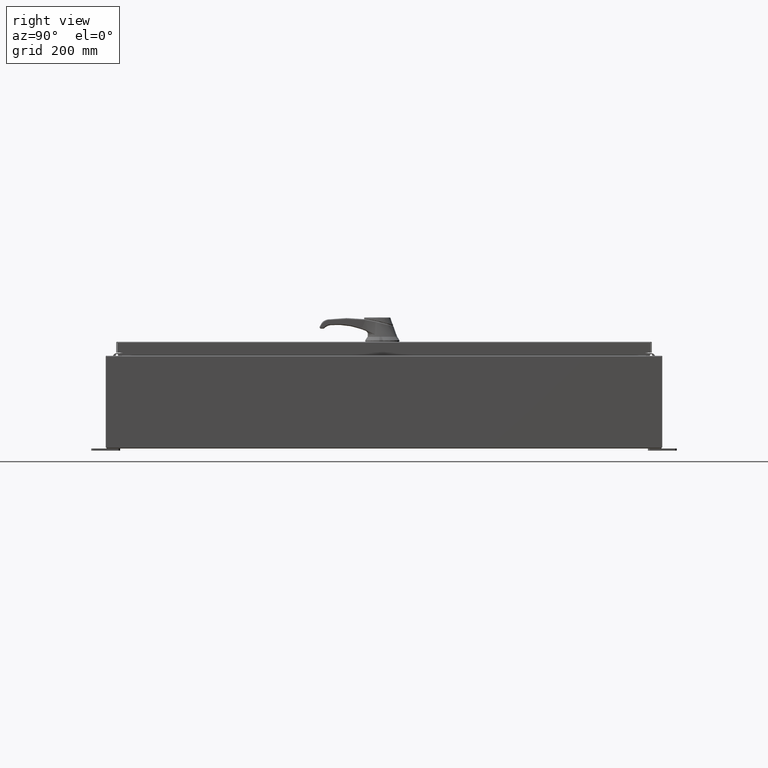
[diagram: clean part render]
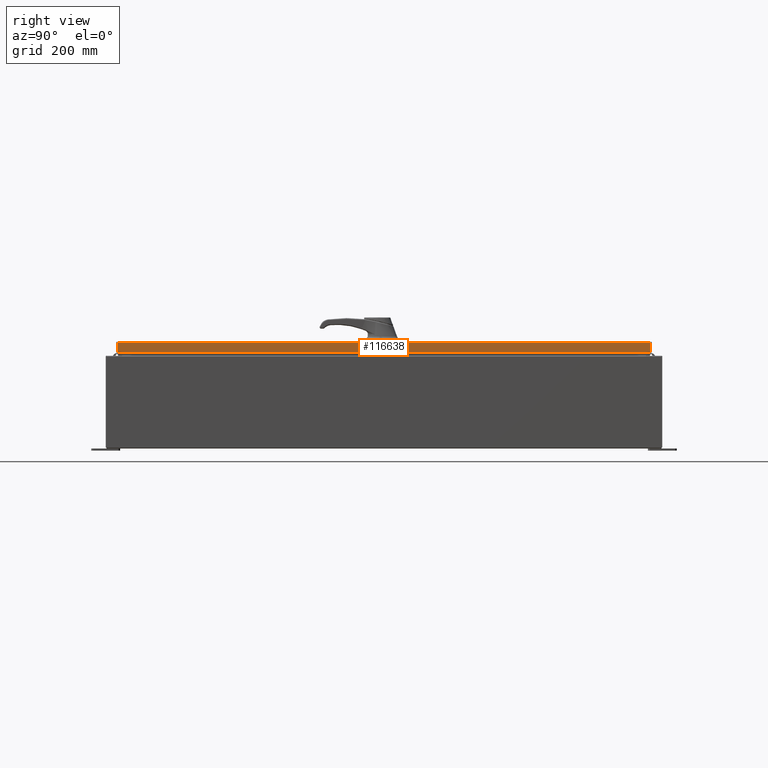
[diagram: same view with one face highlighted and labeled with its STEP entity id]
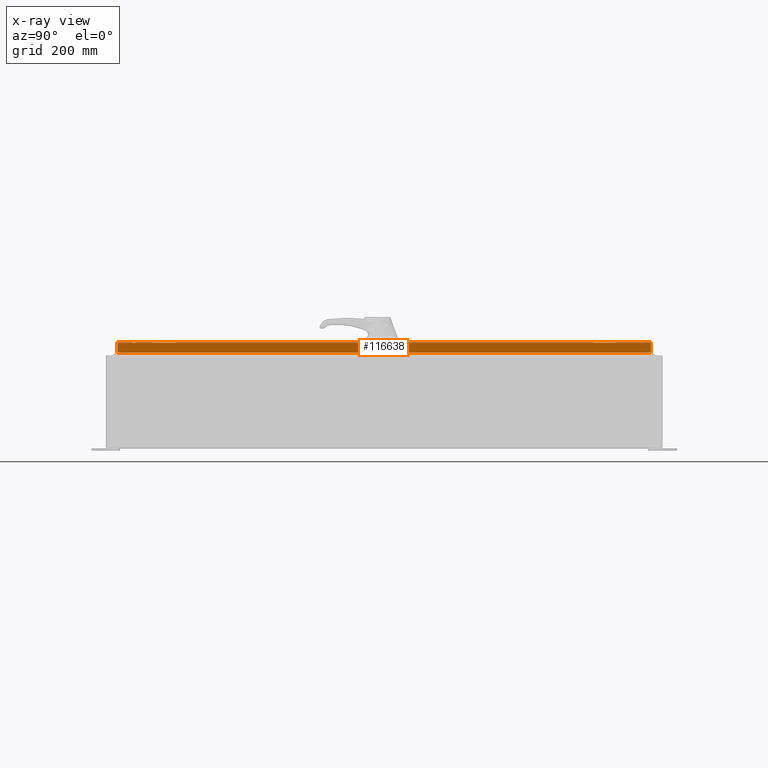
[diagram: x-ray of the same camera — body ghosted, the highlighted face saturated]
A machine part, right view. The second image highlights one B-rep face of the part: STEP entity #116638.
The next image is the same camera in x-ray: the body ghosted, the highlighted face saturated — about 0% of this face is hidden behind the body in this view.
In plain terms, the highlighted planar face has unit normal (1, 0, 0).
Its self-contained STEP definition (entity closure, byte-faithful):
#1782 = EDGE_CURVE ( 'NONE', #130320, #106219, #16532, .T. ) ;
#8800 = DIRECTION ( 'NONE',  ( 2.532419924601866100E-015, 0.0000000000000000000, -1.000000000000000000 ) ) ;
#9286 = LINE ( 'NONE', #121413, #85532 ) ;
#13380 = LINE ( 'NONE', #32557, #96161 ) ;
#14150 = CARTESIAN_POINT ( 'NONE',  ( 17.07799999999999900, -23.00515786437626900, -0.08770000000000008300 ) ) ;
#16532 = LINE ( 'NONE', #134400, #62024 ) ;
#17474 = CARTESIAN_POINT ( 'NONE',  ( 17.07799999999999900, 23.00515786437627200, -0.08770000000000008300 ) ) ;
#17514 = DIRECTION ( 'NONE',  ( 0.0000000000000000000, -1.000000000000000000, 0.0000000000000000000 ) ) ;
#19373 = FACE_OUTER_BOUND ( 'NONE', #70561, .T. ) ;
#22826 = VECTOR ( 'NONE', #17514, 39.37007874015748100 ) ;
#27929 = CARTESIAN_POINT ( 'NONE',  ( 17.07800000000000300, -23.09400000000000100, -0.9376999999999997600 ) ) ;
#29334 = LINE ( 'NONE', #27929, #22826 ) ;
#32557 = CARTESIAN_POINT ( 'NONE',  ( 17.07799999999999900, 23.00515786437627600, 2.041536398895824600E-013 ) ) ;
#34151 = CARTESIAN_POINT ( 'NONE',  ( 17.07800000000000300, -23.00515786437626200, -0.9376999999999997600 ) ) ;
#43239 = ORIENTED_EDGE ( 'NONE', *, *, #1782, .T. ) ;
#49990 = VERTEX_POINT ( 'NONE', #34151 ) ;
#51358 = ORIENTED_EDGE ( 'NONE', *, *, #62398, .F. ) ;
#62024 = VECTOR ( 'NONE', #125706, 39.37007874015748100 ) ;
#62398 = EDGE_CURVE ( 'NONE', #49990, #106219, #9286, .T. ) ;
#64007 = CARTESIAN_POINT ( 'NONE',  ( 17.07800000000000300, 23.00515786437628000, -0.9376999999999997600 ) ) ;
#70561 = EDGE_LOOP ( 'NONE', ( #51358, #95206, #109898, #43239 ) ) ;
#74769 = DIRECTION ( 'NONE',  ( -2.532419924601866100E-015, -6.982962677686265900E-015, 1.000000000000000000 ) ) ;
#85532 = VECTOR ( 'NONE', #111437, 39.37007874015748100 ) ;
#95206 = ORIENTED_EDGE ( 'NONE', *, *, #96785, .F. ) ;
#96161 = VECTOR ( 'NONE', #74769, 39.37007874015748100 ) ;
#96785 = EDGE_CURVE ( 'NONE', #104112, #49990, #29334, .T. ) ;
#104112 = VERTEX_POINT ( 'NONE', #64007 ) ;
#106219 = VERTEX_POINT ( 'NONE', #14150 ) ;
#109898 = ORIENTED_EDGE ( 'NONE', *, *, #111784, .T. ) ;
#111437 = DIRECTION ( 'NONE',  ( -2.532419924601866100E-015, -6.982962677686265900E-015, 1.000000000000000000 ) ) ;
#111784 = EDGE_CURVE ( 'NONE', #104112, #130320, #13380, .T. ) ;
#116638 = ADVANCED_FACE ( 'NONE', ( #19373 ), #133037, .T. ) ;
#119455 = DIRECTION ( 'NONE',  ( 1.000000000000000000, 0.0000000000000000000, 2.532419924601866100E-015 ) ) ;
#121413 = CARTESIAN_POINT ( 'NONE',  ( 17.07799999999999900, -23.00515786437626900, -0.07469999999999980800 ) ) ;
#122581 = CARTESIAN_POINT ( 'NONE',  ( 17.07799999999999900, 0.0000000000000000000, 4.350948112836224800E-014 ) ) ;
#125706 = DIRECTION ( 'NONE',  ( 0.0000000000000000000, -1.000000000000000000, 0.0000000000000000000 ) ) ;
#130320 = VERTEX_POINT ( 'NONE', #17474 ) ;
#133037 = PLANE ( 'NONE',  #133438 ) ;
#133438 = AXIS2_PLACEMENT_3D ( 'NONE', #122581, #119455, #8800 ) ;
#134400 = CARTESIAN_POINT ( 'NONE',  ( 17.07799999999999900, 0.0000000000000000000, -0.08770000000000008300 ) ) ;